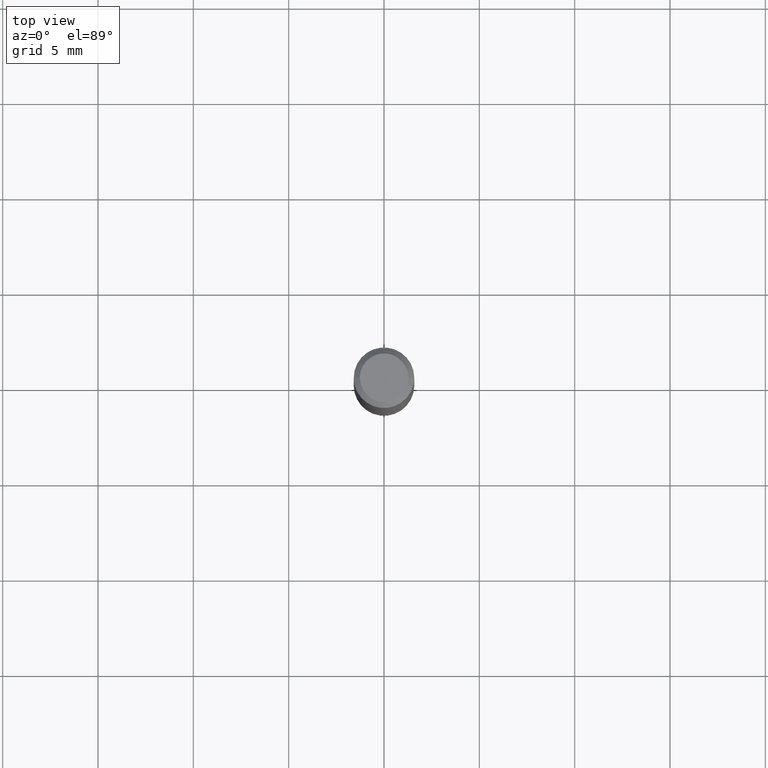
[diagram: clean part render]
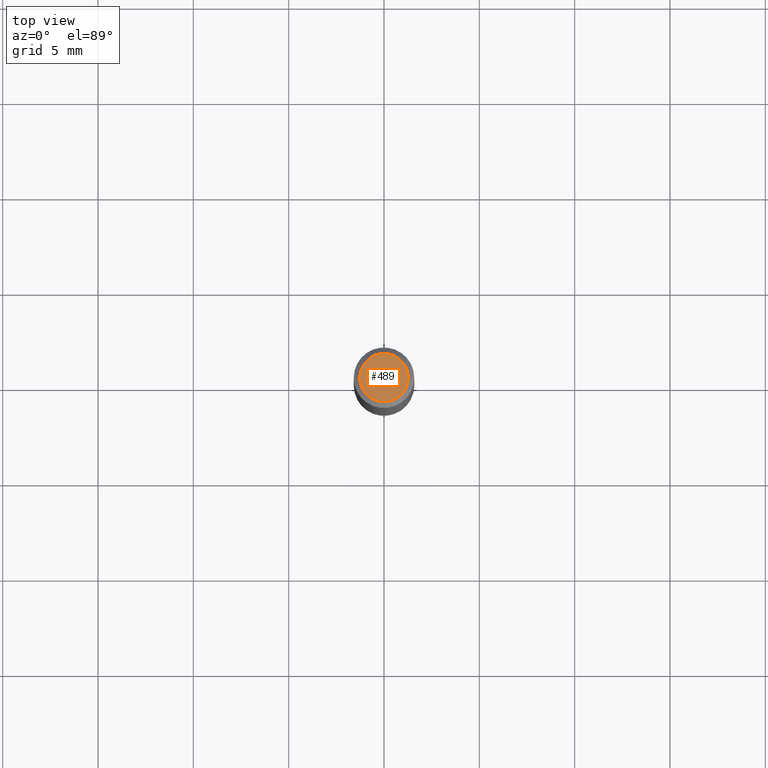
[diagram: same view with one face highlighted and labeled with its STEP entity id]
A machine part, top view. The second image highlights one B-rep face of the part: STEP entity #489.
In plain terms, the highlighted planar face has unit normal (0, -0, -1).
Its self-contained STEP definition (entity closure, byte-faithful):
#17 = AXIS2_PLACEMENT_3D ( 'NONE', #441, #94, #242 ) ;
#43 = DIRECTION ( 'NONE',  ( 1.000000000000000000, -6.982962677686265922E-15, 4.875957971899673662E-29 ) ) ;
#77 = CIRCLE ( 'NONE', #81, 0.04999999999999999584 ) ;
#80 = CARTESIAN_POINT ( 'NONE',  ( 3.893286209682126177E-47, -5.558580879666067980E-33, -1.592040838891559689E-18 ) ) ;
#81 = AXIS2_PLACEMENT_3D ( 'NONE', #80, #220, #43 ) ;
#89 = ORIENTED_EDGE ( 'NONE', *, *, #396, .T. ) ;
#94 = DIRECTION ( 'NONE',  ( 2.438088387897960049E-29, -3.491481338843145188E-15, -1.000000000000000000 ) ) ;
#132 = PLANE ( 'NONE',  #17 ) ;
#135 = DIRECTION ( 'NONE',  ( 1.000000000000000000, -6.982962677686265922E-15, 4.875957971899673662E-29 ) ) ;
#188 = CIRCLE ( 'NONE', #198, 0.04999999999999999584 ) ;
#192 = VERTEX_POINT ( 'NONE', #319 ) ;
#198 = AXIS2_PLACEMENT_3D ( 'NONE', #259, #286, #135 ) ;
#201 = ORIENTED_EDGE ( 'NONE', *, *, #252, .T. ) ;
#220 = DIRECTION ( 'NONE',  ( -2.445468806185136597E-29, 3.491481338843145583E-15, 1.000000000000000000 ) ) ;
#242 = DIRECTION ( 'NONE',  ( -1.000000000000000000, 6.982962677686265922E-15, -4.876176775795935793E-29 ) ) ;
#252 = EDGE_CURVE ( 'NONE', #192, #439, #77, .T. ) ;
#259 = CARTESIAN_POINT ( 'NONE',  ( 3.893286209682126177E-47, -5.558580879666067980E-33, -1.592040838891559689E-18 ) ) ;
#261 = CARTESIAN_POINT ( 'NONE',  ( 0.04999999999999999584, -4.077247707424184212E-16, -1.592040838888913461E-18 ) ) ;
#286 = DIRECTION ( 'NONE',  ( -2.445468806185136597E-29, 3.491481338843145583E-15, 1.000000000000000000 ) ) ;
#313 = EDGE_LOOP ( 'NONE', ( #201, #89 ) ) ;
#319 = CARTESIAN_POINT ( 'NONE',  ( -0.04999999999999999584, 3.709698922520826725E-16, -1.592040838894077649E-18 ) ) ;
#337 = FACE_OUTER_BOUND ( 'NONE', #313, .T. ) ;
#396 = EDGE_CURVE ( 'NONE', #439, #192, #188, .T. ) ;
#439 = VERTEX_POINT ( 'NONE', #261 ) ;
#441 = CARTESIAN_POINT ( 'NONE',  ( 1.946643104841063088E-47, -2.779290439833033990E-33, -7.960204194457798443E-19 ) ) ;
#489 = ADVANCED_FACE ( 'NONE', ( #337 ), #132, .F. ) ;